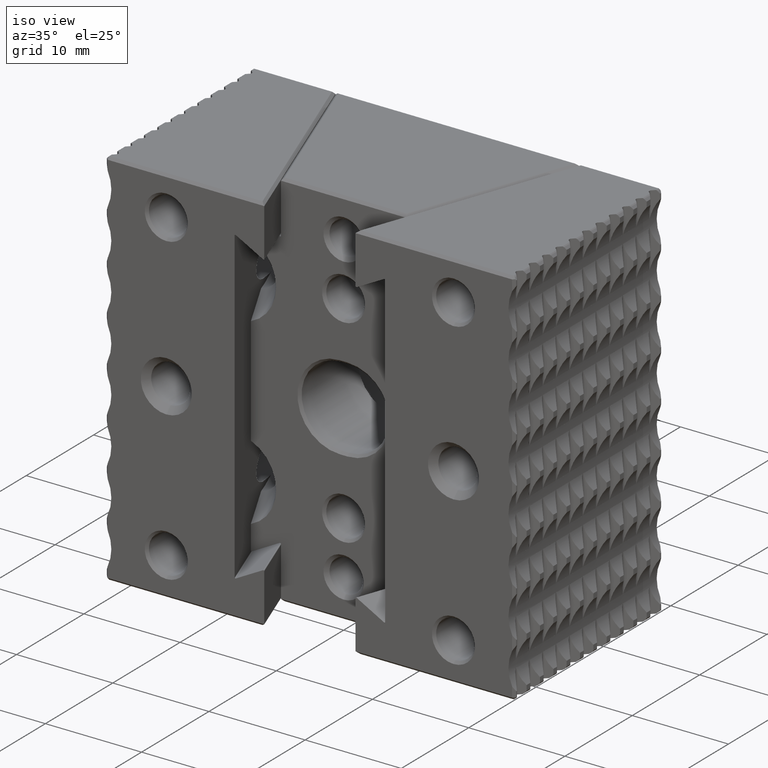
[diagram: clean part render]
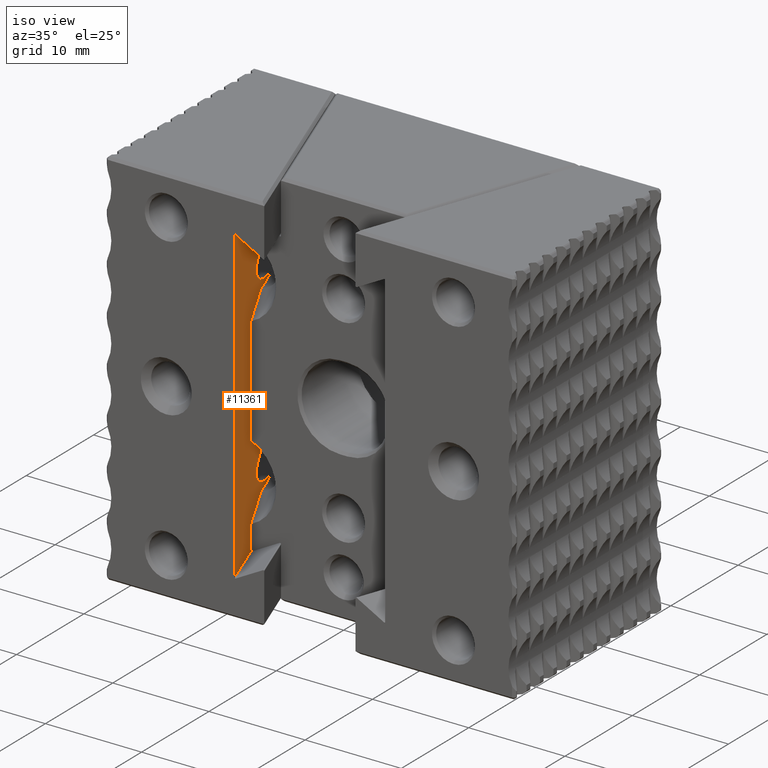
[diagram: same view with one face highlighted and labeled with its STEP entity id]
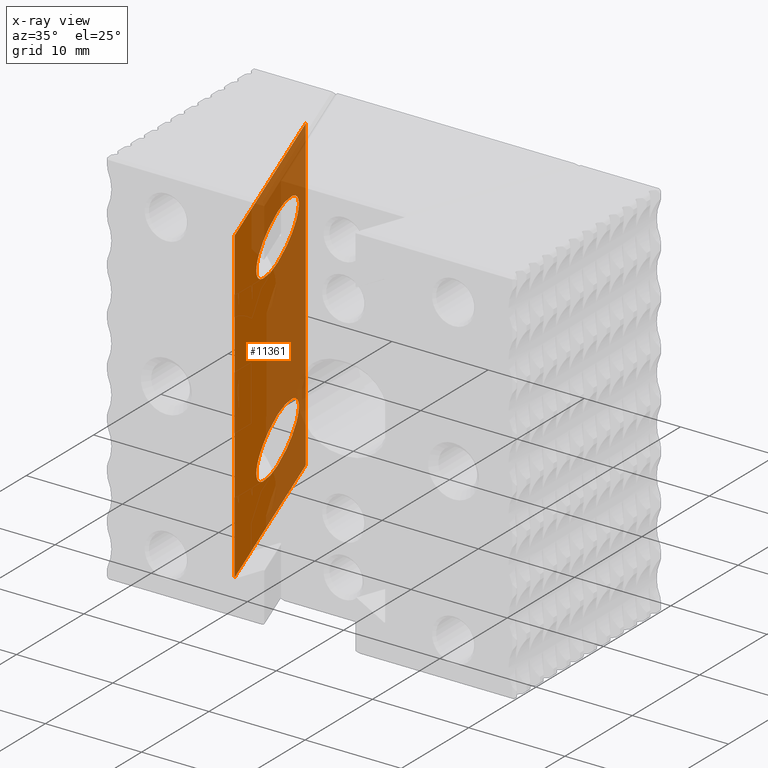
[diagram: x-ray of the same camera — body ghosted, the highlighted face saturated]
A machine part, iso view. The second image highlights one B-rep face of the part: STEP entity #11361.
The next image is the same camera in x-ray: the body ghosted, the highlighted face saturated — about 53% of this face is hidden behind the body in this view.
In plain terms, the highlighted planar face has unit normal (-0.9397, -0.342, 0).
Its self-contained STEP definition (entity closure, byte-faithful):
#9 = CARTESIAN_POINT ( 'NONE',  ( 0.1514339247308052472, 1.039232809709108807, 0.2810000000000000830 ) ) ;
#275 = LINE ( 'NONE', #1234, #19770 ) ;
#877 = CARTESIAN_POINT ( 'NONE',  ( 0.3394339247308051366, 0.5227070548516302706, -0.2810000000000000830 ) ) ;
#1234 = CARTESIAN_POINT ( 'NONE',  ( 0.2144339247308051366, 0.8661417322834645827, -0.6324063879557377810 ) ) ;
#1533 = FACE_BOUND ( 'NONE', #4742, .T. ) ;
#1722 = CARTESIAN_POINT ( 'NONE',  ( 0.3394339247308051366, 0.5227070548516302706, -0.4689999999999999725 ) ) ;
#2461 = VECTOR ( 'NONE', #21094, 39.37007874015748854 ) ;
#2669 = DIRECTION ( 'NONE',  ( 0.0000000000000000000, 0.0000000000000000000, -1.000000000000000000 ) ) ;
#2769 = CARTESIAN_POINT ( 'NONE',  ( 0.3394339247308051366, 0.5227070548516302706, 0.4689999999999999725 ) ) ;
#3099 =( BOUNDED_CURVE ( )  B_SPLINE_CURVE ( 3, ( #9120, #11805, #16944, #1722 ),
 .UNSPECIFIED., .F., .F. ) 
 B_SPLINE_CURVE_WITH_KNOTS ( ( 4, 4 ),
 ( 4.712388980384689674, 7.853981633974482790 ),
 .UNSPECIFIED. ) 
 CURVE ( )  GEOMETRIC_REPRESENTATION_ITEM ( )  RATIONAL_B_SPLINE_CURVE ( ( 1.000000000000000000, 0.3333333333333333703, 0.3333333333333333703, 1.000000000000000000 ) ) 
 REPRESENTATION_ITEM ( '' )  );
#3852 = CARTESIAN_POINT ( 'NONE',  ( 0.5274339247308049705, 0.006181299994151794215, 0.4689999999999999170 ) ) ;
#4654 = ORIENTED_EDGE ( 'NONE', *, *, #21444, .T. ) ;
#4742 = EDGE_LOOP ( 'NONE', ( #4654, #7316 ) ) ;
#5726 = CARTESIAN_POINT ( 'NONE',  ( 0.5296837339377461484, 0.0000000000000000000, 0.7834645669291337988 ) ) ;
#6623 = PLANE ( 'NONE',  #19085 ) ;
#6659 = FACE_OUTER_BOUND ( 'NONE', #12625, .T. ) ;
#6941 = CARTESIAN_POINT ( 'NONE',  ( 0.3394339247308051366, 0.5227070548516302706, 0.2810000000000000830 ) ) ;
#7219 = LINE ( 'NONE', #17911, #19971 ) ;
#7316 = ORIENTED_EDGE ( 'NONE', *, *, #29391, .T. ) ;
#8301 = DIRECTION ( 'NONE',  ( 0.0000000000000000000, 0.0000000000000000000, 1.000000000000000000 ) ) ;
#8537 = ORIENTED_EDGE ( 'NONE', *, *, #20236, .F. ) ;
#8932 = EDGE_LOOP ( 'NONE', ( #32611, #14700 ) ) ;
#8976 =( BOUNDED_CURVE ( )  B_SPLINE_CURVE ( 3, ( #11298, #29210, #3852, #21656 ),
 .UNSPECIFIED., .F., .F. ) 
 B_SPLINE_CURVE_WITH_KNOTS ( ( 4, 4 ),
 ( 1.570796326794896558, 4.712388980384689674 ),
 .UNSPECIFIED. ) 
 CURVE ( )  GEOMETRIC_REPRESENTATION_ITEM ( )  RATIONAL_B_SPLINE_CURVE ( ( 1.000000000000000000, 0.3333333333333333703, 0.3333333333333333703, 1.000000000000000000 ) ) 
 REPRESENTATION_ITEM ( '' )  );
#9120 = CARTESIAN_POINT ( 'NONE',  ( 0.3394339247308051366, 0.5227070548516302706, -0.2810000000000000830 ) ) ;
#9173 = DIRECTION ( 'NONE',  ( -0.9396926207859105373, -0.3420201433256631063, 0.0000000000000000000 ) ) ;
#11298 = CARTESIAN_POINT ( 'NONE',  ( 0.3394339247308051366, 0.5227070548516302706, 0.2810000000000000830 ) ) ;
#11361 = ADVANCED_FACE ( 'NONE', ( #32119, #1533, #6659 ), #6623, .F. ) ;
#11805 = CARTESIAN_POINT ( 'NONE',  ( 0.1514339247308052472, 1.039232809709108585, -0.2810000000000000830 ) ) ;
#11897 = CARTESIAN_POINT ( 'NONE',  ( 0.5274339247308049705, 0.006181299994151794215, -0.2810000000000000830 ) ) ;
#12625 = EDGE_LOOP ( 'NONE', ( #8537, #12941, #23816, #25010 ) ) ;
#12658 = VERTEX_POINT ( 'NONE', #877 ) ;
#12941 = ORIENTED_EDGE ( 'NONE', *, *, #25872, .T. ) ;
#14700 = ORIENTED_EDGE ( 'NONE', *, *, #23006, .T. ) ;
#16944 = CARTESIAN_POINT ( 'NONE',  ( 0.1514339247308052472, 1.039232809709108807, -0.4690000000000000280 ) ) ;
#17374 = EDGE_CURVE ( 'NONE', #12658, #25680, #3099, .T. ) ;
#17911 = CARTESIAN_POINT ( 'NONE',  ( 0.2144339247308051366, 0.8661417322834645827, 0.7834645669291337988 ) ) ;
#18535 = CARTESIAN_POINT ( 'NONE',  ( 0.5296837339377460374, 2.661150755546975271E-16, 0.6324063879557377810 ) ) ;
#18644 = VERTEX_POINT ( 'NONE', #20196 ) ;
#18984 = DIRECTION ( 'NONE',  ( -0.3420201433256630508, 0.9396926207859103153, -3.576792014222722550E-17 ) ) ;
#19085 = AXIS2_PLACEMENT_3D ( 'NONE', #19312, #9173, #26982 ) ;
#19272 = CARTESIAN_POINT ( 'NONE',  ( 0.5296837339377461484, 0.0000000000000000000, -0.6324063879557376699 ) ) ;
#19312 = CARTESIAN_POINT ( 'NONE',  ( 0.1893499205935166296, 0.9350594672401723040, 0.6376025403784444379 ) ) ;
#19461 = VERTEX_POINT ( 'NONE', #19272 ) ;
#19614 =( BOUNDED_CURVE ( )  B_SPLINE_CURVE ( 3, ( #24565, #29460, #11897, #29691 ),
 .UNSPECIFIED., .F., .F. ) 
 B_SPLINE_CURVE_WITH_KNOTS ( ( 4, 4 ),
 ( 1.570796326794896558, 4.712388980384689674 ),
 .UNSPECIFIED. ) 
 CURVE ( )  GEOMETRIC_REPRESENTATION_ITEM ( )  RATIONAL_B_SPLINE_CURVE ( ( 1.000000000000000000, 0.3333333333333333703, 0.3333333333333333703, 1.000000000000000000 ) ) 
 REPRESENTATION_ITEM ( '' )  );
#19770 = VECTOR ( 'NONE', #18984, 39.37007874015748854 ) ;
#19971 = VECTOR ( 'NONE', #2669, 39.37007874015748143 ) ;
#20137 = VERTEX_POINT ( 'NONE', #25442 ) ;
#20196 = CARTESIAN_POINT ( 'NONE',  ( 0.5296837339377461484, 0.0000000000000000000, 0.6324063879557377810 ) ) ;
#20236 = EDGE_CURVE ( 'NONE', #19461, #18644, #27553, .T. ) ;
#20531 = CARTESIAN_POINT ( 'NONE',  ( 0.3394339247308051366, 0.5227070548516302706, 0.2810000000000000830 ) ) ;
#20755 = VECTOR ( 'NONE', #8301, 39.37007874015748143 ) ;
#21094 = DIRECTION ( 'NONE',  ( 0.3420201433256630508, -0.9396926207859103153, -3.576792014222722550E-17 ) ) ;
#21444 = EDGE_CURVE ( 'NONE', #32505, #31376, #25932, .T. ) ;
#21656 = CARTESIAN_POINT ( 'NONE',  ( 0.3394339247308051366, 0.5227070548516302706, 0.4689999999999999725 ) ) ;
#21934 = EDGE_CURVE ( 'NONE', #25418, #20137, #7219, .T. ) ;
#22081 = EDGE_CURVE ( 'NONE', #25418, #18644, #22784, .T. ) ;
#22784 = LINE ( 'NONE', #18535, #2461 ) ;
#23006 = EDGE_CURVE ( 'NONE', #25680, #12658, #19614, .T. ) ;
#23816 = ORIENTED_EDGE ( 'NONE', *, *, #21934, .F. ) ;
#24565 = CARTESIAN_POINT ( 'NONE',  ( 0.3394339247308051366, 0.5227070548516302706, -0.4689999999999999725 ) ) ;
#25010 = ORIENTED_EDGE ( 'NONE', *, *, #22081, .T. ) ;
#25418 = VERTEX_POINT ( 'NONE', #27533 ) ;
#25442 = CARTESIAN_POINT ( 'NONE',  ( 0.2144339247308051366, 0.8661417322834645827, -0.6324063879557376699 ) ) ;
#25680 = VERTEX_POINT ( 'NONE', #31280 ) ;
#25872 = EDGE_CURVE ( 'NONE', #19461, #20137, #275, .T. ) ;
#25932 =( BOUNDED_CURVE ( )  B_SPLINE_CURVE ( 3, ( #2769, #30685, #9, #20531 ),
 .UNSPECIFIED., .F., .F. ) 
 B_SPLINE_CURVE_WITH_KNOTS ( ( 4, 4 ),
 ( 4.712388980384689674, 7.853981633974482790 ),
 .UNSPECIFIED. ) 
 CURVE ( )  GEOMETRIC_REPRESENTATION_ITEM ( )  RATIONAL_B_SPLINE_CURVE ( ( 1.000000000000000000, 0.3333333333333333703, 0.3333333333333333703, 1.000000000000000000 ) ) 
 REPRESENTATION_ITEM ( '' )  );
#26982 = DIRECTION ( 'NONE',  ( 0.3420201433256630508, -0.9396926207859103153, 0.0000000000000000000 ) ) ;
#27533 = CARTESIAN_POINT ( 'NONE',  ( 0.2144339247308051366, 0.8661417322834645827, 0.6324063879557377810 ) ) ;
#27553 = LINE ( 'NONE', #5726, #20755 ) ;
#28861 = CARTESIAN_POINT ( 'NONE',  ( 0.3394339247308051366, 0.5227070548516302706, 0.4689999999999999725 ) ) ;
#29210 = CARTESIAN_POINT ( 'NONE',  ( 0.5274339247308049705, 0.006181299994151861869, 0.2810000000000000830 ) ) ;
#29391 = EDGE_CURVE ( 'NONE', #31376, #32505, #8976, .T. ) ;
#29460 = CARTESIAN_POINT ( 'NONE',  ( 0.5274339247308049705, 0.006181299994151861869, -0.4690000000000000280 ) ) ;
#29691 = CARTESIAN_POINT ( 'NONE',  ( 0.3394339247308051366, 0.5227070548516302706, -0.2810000000000000830 ) ) ;
#30685 = CARTESIAN_POINT ( 'NONE',  ( 0.1514339247308052472, 1.039232809709108585, 0.4690000000000000280 ) ) ;
#31280 = CARTESIAN_POINT ( 'NONE',  ( 0.3394339247308051366, 0.5227070548516302706, -0.4689999999999999725 ) ) ;
#31376 = VERTEX_POINT ( 'NONE', #6941 ) ;
#32119 = FACE_BOUND ( 'NONE', #8932, .T. ) ;
#32505 = VERTEX_POINT ( 'NONE', #28861 ) ;
#32611 = ORIENTED_EDGE ( 'NONE', *, *, #17374, .T. ) ;